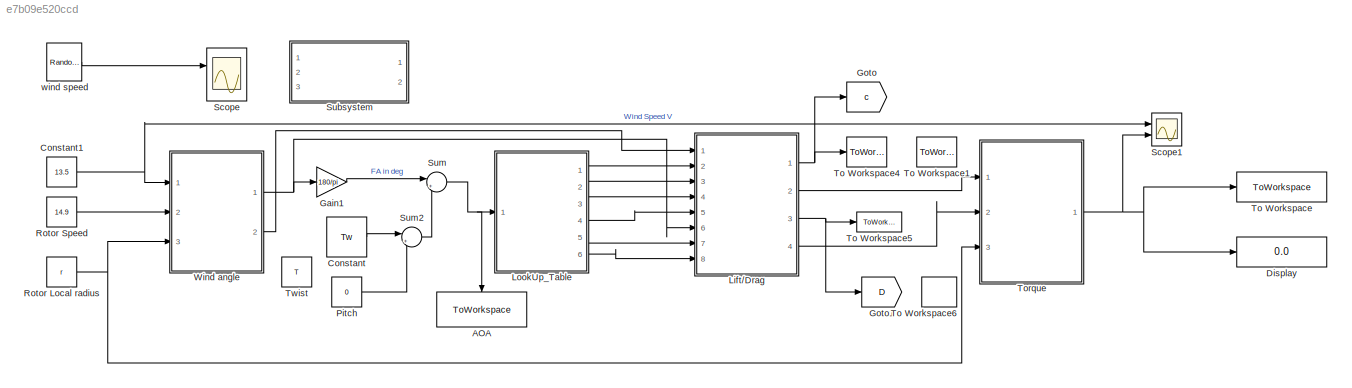
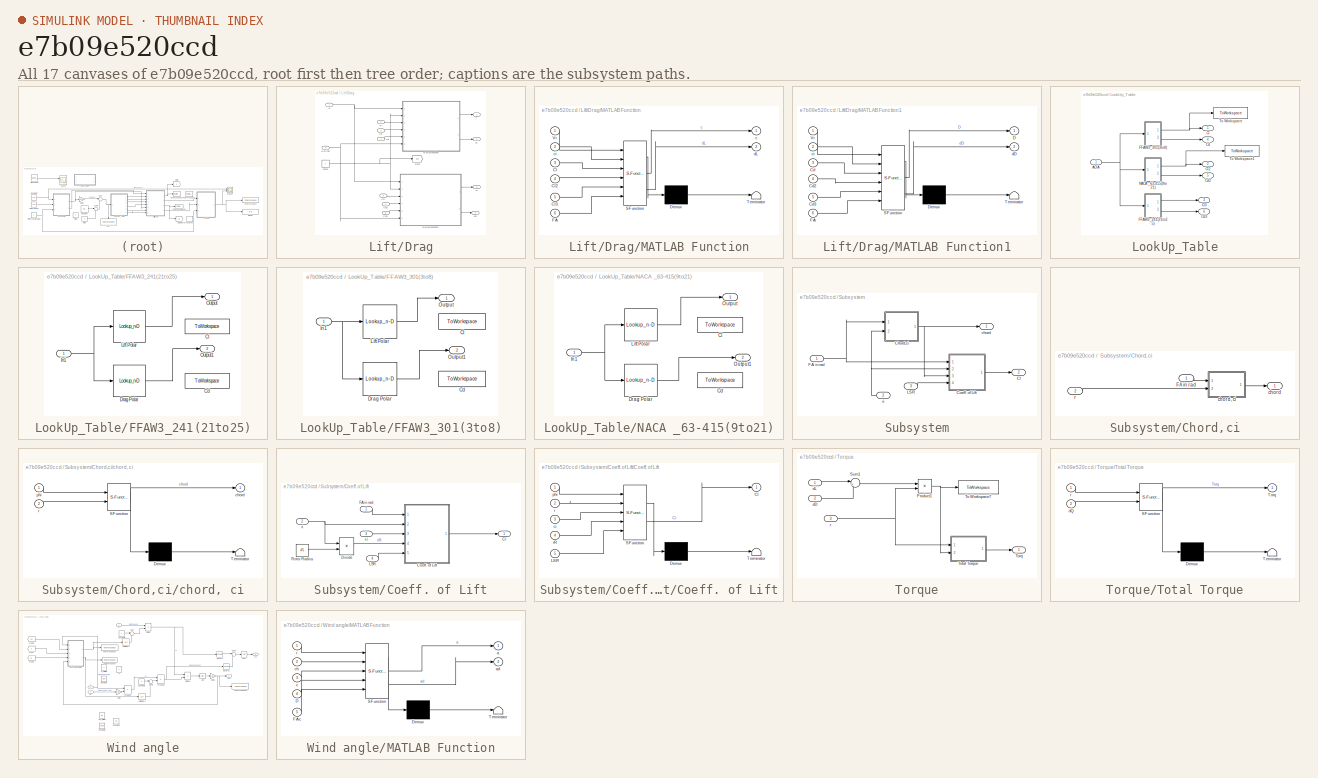
[diagram: thumbnail index - all 17 canvases of the model, root first then tree order]
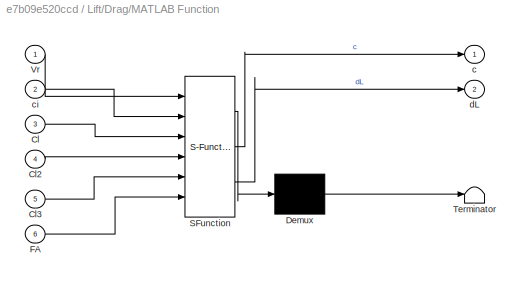
MODEL slx_e7b09e520ccd
KIND model
CONFIG AbsTol = auto
CONFIG EnableMultiTasking = off
CONFIG FixedStep = auto
CONFIG MaxStep = auto
CONFIG MinStep = auto
CONFIG RelTol = 1e-3
CONFIG SampleTimeConstraint = Unconstrained
CONFIG Solver = VariableStepAuto
CONFIG SolverName = VariableStepAuto
CONFIG StartTime = 0.0
CONFIG StopTime = 6
WORKSPACE source: mxarray member
WORKSPACE T: Simulink.Parameter (value not decoded)
WORKSPACE Tw: Simulink.Parameter (value not decoded)
WORKSPACE a: Simulink.Parameter (value not decoded)
WORKSPACE ad: Simulink.Parameter (value not decoded)
WORKSPACE adp5: Simulink.Parameter (value not decoded)
WORKSPACE ap5: Simulink.Parameter (value not decoded)
WORKSPACE c: Simulink.Parameter (value not decoded)
WORKSPACE r: Simulink.Parameter (value not decoded)
WORKSPACE wind_speed = [3 5]
BLOCK [ToWorkspace] AOA
  FixptAsFi = on
  MaxDataPoints = inf
  Ports = [1]
  SampleTime = -1
  Save2DSignal = 2-D array (concatenate along first dimension)
  VariableName = AOA
BLOCK [Constant] Constant
  SampleTime = -1
  Value = Tw
  VectorParams1D = off
BLOCK [Constant] Constant1
  Value = 13.5
BLOCK [Display] Display
  Decimation = 1
  Ports = [1]
BLOCK [Gain] Gain1
  Gain = 180/pi
BLOCK [Goto] Goto
  GotoTag = c
  TagVisibility = global
BLOCK [Goto] Goto1
  GotoTag = D
  TagVisibility = global
BLOCK [SubSystem] Lift//Drag
  Ports = [8, 4]
  RequestExecContextInheritance = off
BLOCK [Inport] Lift//Drag/Cd
  Port = 5
BLOCK [Inport] Lift//Drag/Cd2
  Port = 7
BLOCK [Inport] Lift//Drag/Cd3
  Port = 8
BLOCK [Inport] Lift//Drag/Cl
  Port = 2
BLOCK [Inport] Lift//Drag/Cl2
  Port = 3
BLOCK [Inport] Lift//Drag/Cl3
  Port = 4
BLOCK [Outport] Lift//Drag/D
  Port = 3
BLOCK [Inport] Lift//Drag/FA in rad
  Port = 6
BLOCK [Goto] Lift//Drag/Goto
  GotoTag = ch
  TagVisibility = global
BLOCK [SubSystem] Lift//Drag/MATLAB Function
  ErrorFcn = Stateflow.Translate.translate
  PermitHierarchicalResolution = ExplicitOnly
  Ports = [6, 2]
  RequestExecContextInheritance = off
  SFBlockType = MATLAB Function
  TreatAsAtomicUnit = on
BLOCK [Demux] Lift//Drag/MATLAB Function/ Demux 
  Outputs = 1
  Ports = [1, 1]
BLOCK [S-Function] Lift//Drag/MATLAB Function/ SFunction 
  EnableBusSupport = on
  FunctionName = sf_sfun
  PortCounts = [6 3]
  Ports = [6, 3]
  SFcnIsStateOwnerBlock = off
  SFunctionDeploymentMode = off
  Tag = Stateflow S-Function 3
BLOCK [Terminator] Lift//Drag/MATLAB Function/ Terminator 
BLOCK [Inport] Lift//Drag/MATLAB Function/Cl
  Port = 3
BLOCK [Inport] Lift//Drag/MATLAB Function/Cl2
  Port = 4
BLOCK [Inport] Lift//Drag/MATLAB Function/Cl3
  Port = 5
BLOCK [Inport] Lift//Drag/MATLAB Function/FA
  Port = 6
BLOCK [Inport] Lift//Drag/MATLAB Function/Vr
BLOCK [Outport] Lift//Drag/MATLAB Function/c
BLOCK [Inport] Lift//Drag/MATLAB Function/ci
  Port = 2
BLOCK [Outport] Lift//Drag/MATLAB Function/dL
  Port = 2
BLOCK [SubSystem] Lift//Drag/MATLAB Function1
  ErrorFcn = Stateflow.Translate.translate
  PermitHierarchicalResolution = ExplicitOnly
  Ports = [6, 2]
  RequestExecContextInheritance = off
  SFBlockType = MATLAB Function
  TreatAsAtomicUnit = on
BLOCK [Demux] Lift//Drag/MATLAB Function1/ Demux 
  Outputs = 1
  Ports = [1, 1]
BLOCK [S-Function] Lift//Drag/MATLAB Function1/ SFunction 
  EnableBusSupport = on
  FunctionName = sf_sfun
  PortCounts = [6 3]
  Ports = [6, 3]
  SFcnIsStateOwnerBlock = off
  SFunctionDeploymentMode = off
  Tag = Stateflow S-Function 4
BLOCK [Terminator] Lift//Drag/MATLAB Function1/ Terminator 
BLOCK [Inport] Lift//Drag/MATLAB Function1/Cd
  Port = 3
BLOCK [Inport] Lift//Drag/MATLAB Function1/Cd2
  Port = 4
BLOCK [Inport] Lift//Drag/MATLAB Function1/Cd3
  Port = 5
BLOCK [Outport] Lift//Drag/MATLAB Function1/D
BLOCK [Inport] Lift//Drag/MATLAB Function1/FA
  Port = 6
BLOCK [Inport] Lift//Drag/MATLAB Function1/Vr
BLOCK [Inport] Lift//Drag/MATLAB Function1/ci
  Port = 2
BLOCK [Outport] Lift//Drag/MATLAB Function1/dD
  Port = 2
BLOCK [Inport] Lift//Drag/Vr
BLOCK [Outport] Lift//Drag/c
BLOCK [Constant] Lift//Drag/chord
  Value = c
BLOCK [Outport] Lift//Drag/dD
  Port = 4
BLOCK [Outport] Lift//Drag/dL
  Port = 2
BLOCK [SubSystem] LookUp_Table
  Ports = [1, 6]
  RequestExecContextInheritance = off
BLOCK [Inport] LookUp_Table/AOA
BLOCK [Outport] LookUp_Table/Cd
  Port = 4
BLOCK [Outport] LookUp_Table/Cd2
  Port = 5
BLOCK [Outport] LookUp_Table/Cd3
  Port = 6
BLOCK [Outport] LookUp_Table/Cl
BLOCK [Outport] LookUp_Table/Cl2
  Port = 2
BLOCK [Outport] LookUp_Table/Cl3
  Port = 3
BLOCK [SubSystem] LookUp_Table/FFAW3_241(21to25)
  Ports = [1, 2]
  RequestExecContextInheritance = off
BLOCK [ToWorkspace] LookUp_Table/FFAW3_241(21to25)/Cd
  Commented = on
  FixptAsFi = on
  MaxDataPoints = inf
  Ports = [1]
  SampleTime = -1
  Save2DSignal = 2-D array (concatenate along first dimension)
  VariableName = Cd3
BLOCK [ToWorkspace] LookUp_Table/FFAW3_241(21to25)/Cl
  Commented = on
  FixptAsFi = on
  MaxDataPoints = inf
  Ports = [1]
  SampleTime = -1
  Save2DSignal = 2-D array (concatenate along first dimension)
  VariableName = Cl3
BLOCK [Lookup_n-D] LookUp_Table/FFAW3_241(21to25)/Drag Polar
  BreakpointsForDimension1 = [-4.66442953\n-3.951342282\n-3.36409396\n-2.609060403\n-1.895973154\n-1.266778523\n-0.511744966\n0.033557047\n0.830536913\n1.543624161\n2.088926174\n2.718120805\n3.55704698\n4.270134228\n5.067114094\n6.031879195\n6.954697987\n7.583892617\n8.296979866\n8.968120805\n9.639261745\n10.26845638\n11.23322148\n11.90436242\n12.44966443\n12.95302013\n13.70805369\n14.2533557\n14.75671141\n15.26006711\n15.76342282\n16.01510067]
  InternalRulePriority = Speed
  NumberOfTableDimensions = 1
  Ports = [1, 1]
  RndMeth = Simplest
  Table = [0.010843373\n0.010240964\n0.009939759\n0.010240964\n0.009638554\n0.009939759\n0.009337349\n0.009939759\n0.009939759\n0.010542169\n0.010542169\n0.011144578\n0.011144578\n0.011746988\n0.012349398\n0.012650602\n0.014156627\n0.014457831\n0.014759036\n0.016566265\n0.017168675\n0.017771084\n0.020180723\n0.021385542\n0.022289157\n0.023192771\n0.026204819\n0.028012048\n0.031024096\n0.034337349\n0.039457831\n0.041566265]
BLOCK [Inport] LookUp_Table/FFAW3_241(21to25)/In1
BLOCK [Lookup_n-D] LookUp_Table/FFAW3_241(21to25)/Lift Polar
  BreakpointsForDimension1 = [0.165837479\n0.870646766\n1.451077944\n2.031509121\n2.529021559\n3.109452736\n3.565505804\n4.104477612\n4.60199005\n5.016583748\n5.679933665\n6.343283582\n6.92371476\n7.587064677\n8.084577114\n8.830845771\n9.577114428\n9.950248756\n10.61359867\n11.35986733\n12.10613599\n12.89386401\n13.64013267\n14.51077944\n15.46434494\n16.12769486\n16.83250415\n17.66169154\n18.44941957\n19.32006633\n20.02487562\n20.77114428\n21.51741294\n22.30...<+55ch>
  InternalRulePriority = Speed
  NumberOfTableDimensions = 1
  Ports = [1, 1]
  RndMeth = Simplest
  Table = [0.238095238\n0.285714286\n0.357142857\n0.416666667\n0.5\n0.55952381\n0.607142857\n0.654761905\n0.720238095\n0.785714286\n0.845238095\n0.922619048\n1\n1.035714286\n1.107142857\n1.166666667\n1.244047619\n1.297619048\n1.357142857\n1.398809524\n1.44047619\n1.517857143\n1.523809524\n1.458333333\n1.43452381\n1.422619048\n1.416666667\n1.410714286\n1.392857143\n1.380952381\n1.357142857\n1.345238095\n1.30952381\n1.297619048\n1.279761905\n1...<+35ch>
BLOCK [Outport] LookUp_Table/FFAW3_241(21to25)/Output
BLOCK [Outport] LookUp_Table/FFAW3_241(21to25)/Output1
  Port = 2
BLOCK [SubSystem] LookUp_Table/FFAW3_301(3to8)
  Ports = [1, 2]
  RequestExecContextInheritance = off
BLOCK [ToWorkspace] LookUp_Table/FFAW3_301(3to8)/Cd
  Commented = on
  FixptAsFi = on
  MaxDataPoints = inf
  Ports = [1]
  SampleTime = -1
  Save2DSignal = 2-D array (concatenate along first dimension)
  VariableName = Cd
BLOCK [ToWorkspace] LookUp_Table/FFAW3_301(3to8)/Cl
  Commented = on
  FixptAsFi = on
  MaxDataPoints = inf
  Ports = [1]
  SampleTime = -1
  Save2DSignal = 2-D array (concatenate along first dimension)
  VariableName = Cl
BLOCK [Lookup_n-D] LookUp_Table/FFAW3_301(3to8)/Drag Polar
  BreakpointsForDimension1 = [0.095846645\n0.623003195\n1.150159744\n1.629392971\n2.156549521\n2.68370607\n3.21086262\n3.785942492\n4.217252396\n4.600638978\n5.079872204\n5.702875399\n6.42172524\n7.284345048\n7.955271565\n8.722044728\n9.440894569\n10.25559105\n10.97444089\n11.59744409\n12.22044728\n12.65175719\n13.22683706\n13.84984026\n14.47284345\n15.14376997\n15.67092652\n16.24600639\n16.77316294\n17.20447284\n17.73162939\n18.25878594\n18.78594249\n19.600...<+161ch>
  InternalRulePriority = Speed
  NumberOfTableDimensions = 1
  Ports = [1, 1]
  RndMeth = Simplest
  Table = [0.050561798\n0.049297753\n0.049297753\n0.049297753\n0.049297753\n0.048033708\n0.049297753\n0.049297753\n0.050561798\n0.050561798\n0.050561798\n0.050561798\n0.051825843\n0.051825843\n0.053089888\n0.054353933\n0.061938202\n0.074578652\n0.079634831\n0.092275281\n0.094803371\n0.097331461\n0.10238764\n0.1125\n0.118820225\n0.131460674\n0.136516854\n0.149157303\n0.160533708\n0.168117978\n0.173174157\n0.180758427\n0.188342697\n0.1984550...<+158ch>
BLOCK [Inport] LookUp_Table/FFAW3_301(3to8)/In1
BLOCK [Lookup_n-D] LookUp_Table/FFAW3_301(3to8)/Lift Polar
  BreakpointsForDimension1 = [0.142857143\n0.571428571\n1.047619048\n1.428571429\n1.80952381\n2.238095238\n2.571428571\n2.904761905\n3.238095238\n3.666666667\n4.095238095\n4.333333333\n4.714285714\n5.142857143\n5.428571429\n5.904761905\n6.380952381\n6.80952381\n7.285714286\n7.714285714\n8.238095238\n8.761904762\n9.238095238\n10.04761905\n10.66666667\n11.23809524\n11.80952381\n12.23809524\n12.85714286\n13.23809524\n13.95238095\n14.61904762\n15.19047619\n15.71...<+256ch>
  InternalRulePriority = Speed
  NumberOfTableDimensions = 1
  Ports = [1, 1]
  RndMeth = Simplest
  Table = [0.175722543\n0.249710983\n0.295953757\n0.351445087\n0.411560694\n0.467052023\n0.499421965\n0.54566474\n0.587283237\n0.638150289\n0.684393064\n0.726011561\n0.767630058\n0.804624277\n0.860115607\n0.897109827\n0.952601156\n0.989595376\n1.031213873\n1.07283237\n1.114450867\n1.146820809\n1.165317919\n1.165317919\n1.151445087\n1.156069364\n1.183815029\n1.211560694\n1.230057803\n1.267052023\n1.280924855\n1.299421965\n1.304046243\n1.313...<+257ch>
BLOCK [Outport] LookUp_Table/FFAW3_301(3to8)/Output
BLOCK [Outport] LookUp_Table/FFAW3_301(3to8)/Output1
  Port = 2
BLOCK [SubSystem] LookUp_Table/NACA _63-415(9to21)
  Ports = [1, 2]
  RequestExecContextInheritance = off
BLOCK [ToWorkspace] LookUp_Table/NACA _63-415(9to21)/Cd
  Commented = on
  FixptAsFi = on
  MaxDataPoints = inf
  Ports = [1]
  SampleTime = -1
  Save2DSignal = 2-D array (concatenate along first dimension)
  VariableName = Cd2
BLOCK [ToWorkspace] LookUp_Table/NACA _63-415(9to21)/Cl
  Commented = on
  FixptAsFi = on
  MaxDataPoints = inf
  Ports = [1]
  SampleTime = -1
  Save2DSignal = 2-D array (concatenate along first dimension)
  VariableName = Cl2
BLOCK [Lookup_n-D] LookUp_Table/NACA _63-415(9to21)/Drag Polar
  BreakpointsForDimension1 = [0.032626427\n0.619902121\n1.305057096\n1.76182708\n2.251223491\n2.740619902\n3.099510604\n3.654159869\n4.208809135\n4.730831974\n5.187601958\n5.709624796\n6.427406199\n6.982055465\n7.569331158\n8.156606852\n8.646003263\n9.037520392\n9.657422512\n9.983686786\n10.57096248\n10.99510604\n11.45187602\n11.87601958\n12.30016313\n12.62642741\n13.01794454\n13.37683524]
  InternalRulePriority = Speed
  NumberOfTableDimensions = 1
  Ports = [1, 1]
  RndMeth = Simplest
  Table = [0.004635762\n0.005099338\n0.004635762\n0.004635762\n0.005099338\n0.004635762\n0.005562914\n0.005562914\n0.005562914\n0.007417219\n0.008344371\n0.008344371\n0.009735099\n0.011125828\n0.011125828\n0.01205298\n0.013907285\n0.014834437\n0.015298013\n0.014834437\n0.016225166\n0.020860927\n0.023178808\n0.026887417\n0.031523179\n0.037086093\n0.03986755\n0.047284768]
BLOCK [Inport] LookUp_Table/NACA _63-415(9to21)/In1
BLOCK [Lookup_n-D] LookUp_Table/NACA _63-415(9to21)/Lift Polar
  BreakpointsForDimension1 = [0.093603744\n0.468018721\n0.904836193\n1.341653666\n1.684867395\n2.152886115\n2.55850234\n3.088923557\n3.556942278\n4.149765991\n4.586583463\n4.898595944\n5.335413417\n5.772230889\n6.115444618\n6.458658346\n6.833073323\n7.238689548\n7.613104524\n7.925117005\n8.361934477\n8.767550702\n9.110764431\n9.516380655\n9.953198128\n10.35881435\n10.76443058\n11.07644306\n11.45085803\n12.0124805\n12.51170047\n12.94851794\n13.32293292\n13.75...<+91ch>
  InternalRulePriority = Speed
  NumberOfTableDimensions = 1
  Ports = [1, 1]
  RndMeth = Simplest
  Table = [0.369230769\n0.432692308\n0.473076923\n0.530769231\n0.576923077\n0.623076923\n0.657692308\n0.709615385\n0.773076923\n0.807692308\n0.876923077\n0.923076923\n0.963461538\n0.992307692\n1.009615385\n1.05\n1.090384615\n1.125\n1.165384615\n1.2\n1.246153846\n1.280769231\n1.309615385\n1.35\n1.373076923\n1.407692308\n1.436538462\n1.465384615\n1.476923077\n1.5\n1.528846154\n1.546153846\n1.557692308\n1.546153846\n1.546153846\n1.523076923\n1.5...<+49ch>
BLOCK [Outport] LookUp_Table/NACA _63-415(9to21)/Output
BLOCK [Outport] LookUp_Table/NACA _63-415(9to21)/Output1
  Port = 2
BLOCK [ToWorkspace] LookUp_Table/To Workspace
  FixptAsFi = on
  MaxDataPoints = inf
  Ports = [1]
  SampleTime = -1
  Save2DSignal = 2-D array (concatenate along first dimension)
  VariableName = Cl
BLOCK [ToWorkspace] LookUp_Table/To Workspace1
  FixptAsFi = on
  MaxDataPoints = inf
  Ports = [1]
  SampleTime = -1
  Save2DSignal = 2-D array (concatenate along first dimension)
  VariableName = Cl2
BLOCK [Constant] Pitch
  Value = 0
BLOCK [Constant] Rotor Local radius
  Value = r
BLOCK [Constant] Rotor Speed
  Value = 14.9
  VectorParams1D = off
BLOCK [Scope] Scope
  Commented = on
  Floating = off
  NumInputPorts = 2
  Ports = [2]
  ScopeSpecificationString = Simulink.scopes.TimeScopeBlockCfg('CurrentConfiguration', extmgr.ConfigurationSet(extmgr.Configuration('Core','General UI',true),extmgr.Configuration('Core','Source UI',true),extmgr.Configuration('Sources','WiredSimulink',true),extmgr.Configuration('Visuals','Time Domain',true,'SerializedDisplays',{struct('MinYLimReal','12.47282','MaxYLimReal','18.55484','YLabelReal','','MinYLimMag','12.47282','Ma...<+2031ch>
BLOCK [Scope] Scope1
  Floating = off
  NumInputPorts = 2
  Ports = [2]
  ScopeSpecificationString = Simulink.scopes.TimeScopeBlockCfg('CurrentConfiguration', extmgr.ConfigurationSet(extmgr.Configuration('Core','General UI',true),extmgr.Configuration('Core','Source UI',true),extmgr.Configuration('Sources','WiredSimulink',true,'DataLoggingVariableName','ScopeData1'),extmgr.Configuration('Visuals','Time Domain',true,'SerializedDisplays',{struct('MinYLimReal','3.5','MaxYLimReal','23.5','YLabelReal',...<+2070ch>
BLOCK [SubSystem] Subsystem
  Commented = on
  Ports = [3, 2]
  RequestExecContextInheritance = off
BLOCK [SubSystem] Subsystem/Chord,ci
  Ports = [2, 1]
  RequestExecContextInheritance = off
BLOCK [Inport] Subsystem/Chord,ci/FA in rad
BLOCK [Outport] Subsystem/Chord,ci/chord
BLOCK [SubSystem] Subsystem/Chord,ci/chord, ci
  ErrorFcn = Stateflow.Translate.translate
  PermitHierarchicalResolution = ExplicitOnly
  Ports = [2, 1]
  RequestExecContextInheritance = off
  SFBlockType = MATLAB Function
  TreatAsAtomicUnit = on
BLOCK [Demux] Subsystem/Chord,ci/chord, ci/ Demux 
  Outputs = 1
  Ports = [1, 1]
BLOCK [S-Function] Subsystem/Chord,ci/chord, ci/ SFunction 
  EnableBusSupport = on
  FunctionName = sf_sfun
  PortCounts = [2 2]
  Ports = [2, 2]
  SFcnIsStateOwnerBlock = off
  SFunctionDeploymentMode = off
  Tag = Stateflow S-Function 2
BLOCK [Terminator] Subsystem/Chord,ci/chord, ci/ Terminator 
BLOCK [Outport] Subsystem/Chord,ci/chord, ci/chord
BLOCK [Inport] Subsystem/Chord,ci/chord, ci/phi
BLOCK [Inport] Subsystem/Chord,ci/chord, ci/r
  Port = 2
BLOCK [Inport] Subsystem/Chord,ci/r
  Port = 2
BLOCK [Outport] Subsystem/Cl
  Port = 2
BLOCK [SubSystem] Subsystem/Coeff. of Lift
  Ports = [4, 1]
  RequestExecContextInheritance = off
BLOCK [Outport] Subsystem/Coeff. of Lift/Cl
BLOCK [SubSystem] Subsystem/Coeff. of Lift/Coeff. of Lift
  ErrorFcn = Stateflow.Translate.translate
  PermitHierarchicalResolution = ExplicitOnly
  Ports = [5, 1]
  RequestExecContextInheritance = off
  SFBlockType = MATLAB Function
  TreatAsAtomicUnit = on
BLOCK [Demux] Subsystem/Coeff. of Lift/Coeff. of Lift/ Demux 
  Outputs = 1
  Ports = [1, 1]
BLOCK [S-Function] Subsystem/Coeff. of Lift/Coeff. of Lift/ SFunction 
  EnableBusSupport = on
  FunctionName = sf_sfun
  PortCounts = [5 2]
  Ports = [5, 2]
  SFcnIsStateOwnerBlock = off
  SFunctionDeploymentMode = off
  Tag = Stateflow S-Function 1
BLOCK [Terminator] Subsystem/Coeff. of Lift/Coeff. of Lift/ Terminator 
BLOCK [Outport] Subsystem/Coeff. of Lift/Coeff. of Lift/Cl
BLOCK [Inport] Subsystem/Coeff. of Lift/Coeff. of Lift/LSR
  Port = 5
BLOCK [Inport] Subsystem/Coeff. of Lift/Coeff. of Lift/ci
  Port = 3
BLOCK [Inport] Subsystem/Coeff. of Lift/Coeff. of Lift/phi
BLOCK [Inport] Subsystem/Coeff. of Lift/Coeff. of Lift/r
  Port = 2
BLOCK [Inport] Subsystem/Coeff. of Lift/Coeff. of Lift/rR
  Port = 4
BLOCK [Product] Subsystem/Coeff. of Lift/Divide
  Inputs = */
  Ports = [2, 1]
BLOCK [Inport] Subsystem/Coeff. of Lift/FA in rad
BLOCK [Inport] Subsystem/Coeff. of Lift/LSR
  Port = 4
BLOCK [Constant] Subsystem/Coeff. of Lift/Rotor Radius
  Value = 45
BLOCK [Inport] Subsystem/Coeff. of Lift/ci
  Port = 3
BLOCK [Inport] Subsystem/Coeff. of Lift/ri
  Port = 2
BLOCK [Inport] Subsystem/FA in rad
BLOCK [Inport] Subsystem/LSR
  Port = 3
BLOCK [Outport] Subsystem/chord
BLOCK [Inport] Subsystem/ri
  Port = 2
BLOCK [Sum] Sum
  Inputs = |+-
  Ports = [2, 1]
BLOCK [Sum] Sum2
  Inputs = |++
  Ports = [2, 1]
BLOCK [ToWorkspace] To Workspace
  FixptAsFi = on
  MaxDataPoints = inf
  Ports = [1]
  SampleTime = -1
  Save2DSignal = 2-D array (concatenate along first dimension)
  VariableName = totTorq
BLOCK [ToWorkspace] To Workspace1
  Commented = on
  FixptAsFi = on
  MaxDataPoints = inf
  Ports = [1]
  SampleTime = -1
  Save2DSignal = 2-D array (concatenate along first dimension)
  VariableName = dL
BLOCK [ToWorkspace] To Workspace4
  FixptAsFi = on
  MaxDataPoints = inf
  Ports = [1]
  SampleTime = -1
  Save2DSignal = 2-D array (concatenate along first dimension)
  VariableName = c
BLOCK [ToWorkspace] To Workspace5
  FixptAsFi = on
  MaxDataPoints = inf
  Ports = [1]
  SampleTime = -1
  Save2DSignal = 2-D array (concatenate along first dimension)
  VariableName = D
BLOCK [ToWorkspace] To Workspace6
  Commented = on
  FixptAsFi = on
  MaxDataPoints = inf
  Ports = [1]
  SampleTime = -1
  Save2DSignal = 2-D array (concatenate along first dimension)
  VariableName = dD
BLOCK [SubSystem] Torque
  Ports = [3, 1]
  RequestExecContextInheritance = off
BLOCK [Product] Torque/Product1
  Ports = [2, 1]
BLOCK [Sum] Torque/Sum1
  Inputs = |+-
  Ports = [2, 1]
BLOCK [ToWorkspace] Torque/To Workspace7
  FixptAsFi = on
  MaxDataPoints = inf
  Ports = [1]
  SampleTime = -1
  Save2DSignal = 2-D array (concatenate along first dimension)
  VariableName = dQ
BLOCK [Outport] Torque/Torq
BLOCK [SubSystem] Torque/Total Torque
  ErrorFcn = Stateflow.Translate.translate
  PermitHierarchicalResolution = ExplicitOnly
  Ports = [2, 1]
  RequestExecContextInheritance = off
  SFBlockType = MATLAB Function
  TreatAsAtomicUnit = on
BLOCK [Demux] Torque/Total Torque/ Demux 
  Outputs = 1
  Ports = [1, 1]
BLOCK [S-Function] Torque/Total Torque/ SFunction 
  EnableBusSupport = on
  FunctionName = sf_sfun
  PortCounts = [2 2]
  Ports = [2, 2]
  SFcnIsStateOwnerBlock = off
  SFunctionDeploymentMode = off
  Tag = Stateflow S-Function 5
BLOCK [Terminator] Torque/Total Torque/ Terminator 
BLOCK [Outport] Torque/Total Torque/Torq
BLOCK [Inport] Torque/Total Torque/dQ
  Port = 2
BLOCK [Inport] Torque/Total Torque/r
BLOCK [Inport] Torque/dD
  Port = 2
BLOCK [Inport] Torque/dL
BLOCK [Inport] Torque/r
  Port = 3
BLOCK [Constant] Twist
  Commented = on
  Value = T
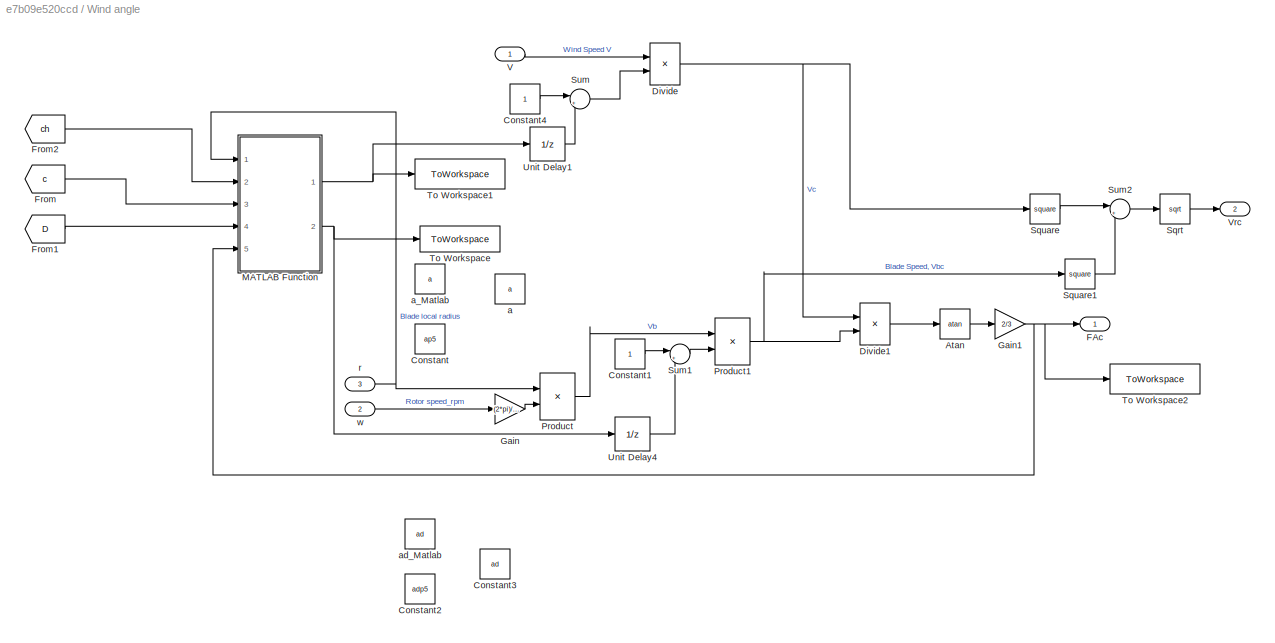
BLOCK [SubSystem] Wind angle
  Ports = [3, 2]
  RequestExecContextInheritance = off
BLOCK [Trigonometry] Wind angle/Atan
  Operator = atan
  Ports = [1, 1]
BLOCK [Constant] Wind angle/Constant
  Commented = on
  Value = ap5
BLOCK [Constant] Wind angle/Constant1
BLOCK [Constant] Wind angle/Constant2
  Commented = on
  Value = adp5
BLOCK [Constant] Wind angle/Constant3
  Commented = on
  Value = ad
BLOCK [Constant] Wind angle/Constant4
BLOCK [Product] Wind angle/Divide
  Inputs = **
  Ports = [2, 1]
BLOCK [Product] Wind angle/Divide1
  Inputs = */
  Ports = [2, 1]
BLOCK [Outport] Wind angle/FAc
BLOCK [From] Wind angle/From
  GotoTag = c
  TagVisibility = global
BLOCK [From] Wind angle/From1
  GotoTag = D
  TagVisibility = global
BLOCK [From] Wind angle/From2
  GotoTag = ch
  TagVisibility = global
BLOCK [Gain] Wind angle/Gain
  Gain = (2*pi)/60
BLOCK [Gain] Wind angle/Gain1
  Gain = 2/3
BLOCK [SubSystem] Wind angle/MATLAB Function
  ErrorFcn = Stateflow.Translate.translate
  PermitHierarchicalResolution = ExplicitOnly
  Ports = [5, 2]
  RequestExecContextInheritance = off
  SFBlockType = MATLAB Function
  TreatAsAtomicUnit = on
BLOCK [Demux] Wind angle/MATLAB Function/ Demux 
  Outputs = 1
  Ports = [1, 1]
BLOCK [S-Function] Wind angle/MATLAB Function/ SFunction 
  EnableBusSupport = on
  FunctionName = sf_sfun
  PortCounts = [5 3]
  Ports = [5, 3]
  SFcnIsStateOwnerBlock = off
  SFunctionDeploymentMode = off
  Tag = Stateflow S-Function 6
BLOCK [Terminator] Wind angle/MATLAB Function/ Terminator 
BLOCK [Inport] Wind angle/MATLAB Function/D
  Port = 4
BLOCK [Inport] Wind angle/MATLAB Function/FAc
  Port = 5
BLOCK [Outport] Wind angle/MATLAB Function/a
BLOCK [Outport] Wind angle/MATLAB Function/ad
  Port = 2
BLOCK [Inport] Wind angle/MATLAB Function/c
  Port = 3
BLOCK [Inport] Wind angle/MATLAB Function/ch
  Port = 2
BLOCK [Inport] Wind angle/MATLAB Function/r
BLOCK [Product] Wind angle/Product
  Ports = [2, 1]
BLOCK [Product] Wind angle/Product1
  Ports = [2, 1]
BLOCK [Sqrt] Wind angle/Sqrt
BLOCK [Math] Wind angle/Square
  Operator = square
  Ports = [1, 1]
BLOCK [Math] Wind angle/Square1
  Operator = square
  Ports = [1, 1]
BLOCK [Sum] Wind angle/Sum
  Inputs = |+-
  Ports = [2, 1]
BLOCK [Sum] Wind angle/Sum1
  Inputs = |++
  Ports = [2, 1]
BLOCK [Sum] Wind angle/Sum2
  Inputs = |++
  Ports = [2, 1]
BLOCK [ToWorkspace] Wind angle/To Workspace
  FixptAsFi = on
  MaxDataPoints = inf
  Ports = [1]
  SampleTime = -1
  Save2DSignal = 2-D array (concatenate along first dimension)
  VariableName = ad
BLOCK [ToWorkspace] Wind angle/To Workspace1
  FixptAsFi = on
  MaxDataPoints = inf
  Ports = [1]
  SampleTime = -1
  Save2DSignal = 2-D array (concatenate along first dimension)
  VariableName = a
BLOCK [ToWorkspace] Wind angle/To Workspace2
  FixptAsFi = on
  MaxDataPoints = inf
  Ports = [1]
  SampleTime = -1
  Save2DSignal = 2-D array (concatenate along first dimension)
  VariableName = FAc
BLOCK [UnitDelay] Wind angle/Unit Delay1
  HasFrameUpgradeWarning = on
  SampleTime = -1
BLOCK [UnitDelay] Wind angle/Unit Delay4
  HasFrameUpgradeWarning = on
  SampleTime = -1
BLOCK [Inport] Wind angle/V
BLOCK [Outport] Wind angle/Vrc
  Port = 2
BLOCK [Constant] Wind angle/a
  Commented = on
  Value = a
BLOCK [Constant] Wind angle/a_Matlab
  Commented = on
  Value = a
BLOCK [Constant] Wind angle/ad_Matlab
  Commented = on
  Value = ad
BLOCK [Inport] Wind angle/r
  Port = 3
BLOCK [Inport] Wind angle/w
  Port = 2
BLOCK [Reference] wind speed  REF=dspsrcs4/Random
Source
  Commented = on
  Ports = [0, 1]
  SourceBlock = dspsrcs4/Random\nSource
  SourceProductBaseCode = DS
  SourceType = Random Source
  UserDataPersistent = on
NET Constant1:1 -> Scope1:1, Wind angle:1
LINE Constant:1 -> Sum2:1
LINE Gain1:1 -> Sum:1
LINE Lift//Drag/Cd2:1 -> Lift//Drag/MATLAB Function1:4
LINE Lift//Drag/Cd3:1 -> Lift//Drag/MATLAB Function1:5
LINE Lift//Drag/Cd:1 -> Lift//Drag/MATLAB Function1:3
LINE Lift//Drag/Cl2:1 -> Lift//Drag/MATLAB Function:4
LINE Lift//Drag/Cl3:1 -> Lift//Drag/MATLAB Function:5
LINE Lift//Drag/Cl:1 -> Lift//Drag/MATLAB Function:3
NET Lift//Drag/FA in rad:1 -> Lift//Drag/MATLAB Function1:6, Lift//Drag/MATLAB Function:6
LINE Lift//Drag/MATLAB Function1:1 -> Lift//Drag/D:1
LINE Lift//Drag/MATLAB Function1:2 -> Lift//Drag/dD:1
LINE Lift//Drag/MATLAB Function:1 -> Lift//Drag/c:1
LINE Lift//Drag/MATLAB Function:2 -> Lift//Drag/dL:1
NET Lift//Drag/Vr:1 -> Lift//Drag/MATLAB Function1:1, Lift//Drag/MATLAB Function:1
NET Lift//Drag/chord:1 -> Lift//Drag/Goto:1, Lift//Drag/MATLAB Function1:2, Lift//Drag/MATLAB Function:2
NET Lift//Drag:1 -> Goto:1, To Workspace4:1
LINE Lift//Drag:2 -> Torque:1
NET Lift//Drag:3 -> Goto1:1, To Workspace5:1
LINE Lift//Drag:4 -> Torque:2
NET LookUp_Table/AOA:1 -> LookUp_Table/FFAW3_241(21to25):1, LookUp_Table/FFAW3_301(3to8):1, LookUp_Table/NACA _63-415(9to21):1
LINE LookUp_Table/FFAW3_241(21to25)/Drag Polar:1 -> LookUp_Table/FFAW3_241(21to25)/Output1:1
NET LookUp_Table/FFAW3_241(21to25)/In1:1 -> LookUp_Table/FFAW3_241(21to25)/Drag Polar:1, LookUp_Table/FFAW3_241(21to25)/Lift Polar:1
LINE LookUp_Table/FFAW3_241(21to25)/Lift Polar:1 -> LookUp_Table/FFAW3_241(21to25)/Output:1
LINE LookUp_Table/FFAW3_241(21to25):1 -> LookUp_Table/Cl3:1
LINE LookUp_Table/FFAW3_241(21to25):2 -> LookUp_Table/Cd3:1
LINE LookUp_Table/FFAW3_301(3to8)/Drag Polar:1 -> LookUp_Table/FFAW3_301(3to8)/Output1:1
NET LookUp_Table/FFAW3_301(3to8)/In1:1 -> LookUp_Table/FFAW3_301(3to8)/Drag Polar:1, LookUp_Table/FFAW3_301(3to8)/Lift Polar:1
LINE LookUp_Table/FFAW3_301(3to8)/Lift Polar:1 -> LookUp_Table/FFAW3_301(3to8)/Output:1
NET LookUp_Table/FFAW3_301(3to8):1 -> LookUp_Table/Cl:1, LookUp_Table/To Workspace:1
LINE LookUp_Table/FFAW3_301(3to8):2 -> LookUp_Table/Cd:1
LINE LookUp_Table/NACA _63-415(9to21)/Drag Polar:1 -> LookUp_Table/NACA _63-415(9to21)/Output1:1
NET LookUp_Table/NACA _63-415(9to21)/In1:1 -> LookUp_Table/NACA _63-415(9to21)/Drag Polar:1, LookUp_Table/NACA _63-415(9to21)/Lift Polar:1
LINE LookUp_Table/NACA _63-415(9to21)/Lift Polar:1 -> LookUp_Table/NACA _63-415(9to21)/Output:1
NET LookUp_Table/NACA _63-415(9to21):1 -> LookUp_Table/Cl2:1, LookUp_Table/To Workspace1:1
LINE LookUp_Table/NACA _63-415(9to21):2 -> LookUp_Table/Cd2:1
LINE LookUp_Table:1 -> Lift//Drag:2
LINE LookUp_Table:2 -> Lift//Drag:3
LINE LookUp_Table:3 -> Lift//Drag:4
LINE LookUp_Table:4 -> Lift//Drag:5
LINE LookUp_Table:5 -> Lift//Drag:7
LINE LookUp_Table:6 -> Lift//Drag:8
LINE Pitch:1 -> Sum2:2
NET Rotor Local radius:1 -> Torque:3, Wind angle:3
LINE Rotor Speed:1 -> Wind angle:2
LINE Subsystem/Chord,ci/FA in rad:1 -> Subsystem/Chord,ci/chord, ci:1
LINE Subsystem/Chord,ci/chord, ci:1 -> Subsystem/Chord,ci/chord:1
LINE Subsystem/Chord,ci/r:1 -> Subsystem/Chord,ci/chord, ci:2
NET Subsystem/Chord,ci:1 -> Subsystem/Coeff. of Lift:3, Subsystem/chord:1
LINE Subsystem/Coeff. of Lift/Coeff. of Lift:1 -> Subsystem/Coeff. of Lift/Cl:1
LINE Subsystem/Coeff. of Lift/Divide:1 -> Subsystem/Coeff. of Lift/Coeff. of Lift:4
LINE Subsystem/Coeff. of Lift/FA in rad:1 -> Subsystem/Coeff. of Lift/Coeff. of Lift:1
LINE Subsystem/Coeff. of Lift/LSR:1 -> Subsystem/Coeff. of Lift/Coeff. of Lift:5
LINE Subsystem/Coeff. of Lift/Rotor Radius:1 -> Subsystem/Coeff. of Lift/Divide:2
LINE Subsystem/Coeff. of Lift/ci:1 -> Subsystem/Coeff. of Lift/Coeff. of Lift:3
NET Subsystem/Coeff. of Lift/ri:1 -> Subsystem/Coeff. of Lift/Coeff. of Lift:2, Subsystem/Coeff. of Lift/Divide:1
LINE Subsystem/Coeff. of Lift:1 -> Subsystem/Cl:1
NET Subsystem/FA in rad:1 -> Subsystem/Chord,ci:1, Subsystem/Coeff. of Lift:1
LINE Subsystem/LSR:1 -> Subsystem/Coeff. of Lift:4
NET Subsystem/ri:1 -> Subsystem/Chord,ci:2, Subsystem/Coeff. of Lift:2
LINE Sum2:1 -> Sum:2
NET Sum:1 -> AOA:1, LookUp_Table:1
NET Torque/Product1:1 -> Torque/To Workspace7:1, Torque/Total Torque:2
LINE Torque/Sum1:1 -> Torque/Product1:1
LINE Torque/Total Torque:1 -> Torque/Torq:1
LINE Torque/dD:1 -> Torque/Sum1:2
LINE Torque/dL:1 -> Torque/Sum1:1
NET Torque/r:1 -> Torque/Product1:2, Torque/Total Torque:1
NET Torque:1 -> Display:1, Scope1:2, To Workspace:1
LINE Wind angle/Atan:1 -> Wind angle/Gain1:1
LINE Wind angle/Constant1:1 -> Wind angle/Sum1:1
LINE Wind angle/Constant4:1 -> Wind angle/Sum:1
LINE Wind angle/Divide1:1 -> Wind angle/Atan:1
NET Wind angle/Divide:1 -> Wind angle/Divide1:1, Wind angle/Square:1
LINE Wind angle/From1:1 -> Wind angle/MATLAB Function:4
LINE Wind angle/From2:1 -> Wind angle/MATLAB Function:2
LINE Wind angle/From:1 -> Wind angle/MATLAB Function:3
NET Wind angle/Gain1:1 -> Wind angle/FAc:1, Wind angle/MATLAB Function:5, Wind angle/To Workspace2:1
LINE Wind angle/Gain:1 -> Wind angle/Product:2
NET Wind angle/MATLAB Function:1 -> Wind angle/To Workspace1:1, Wind angle/Unit Delay1:1
NET Wind angle/MATLAB Function:2 -> Wind angle/To Workspace:1, Wind angle/Unit Delay4:1
NET Wind angle/Product1:1 -> Wind angle/Divide1:2, Wind angle/Square1:1
LINE Wind angle/Product:1 -> Wind angle/Product1:1
LINE Wind angle/Sqrt:1 -> Wind angle/Vrc:1
LINE Wind angle/Square1:1 -> Wind angle/Sum2:2
LINE Wind angle/Square:1 -> Wind angle/Sum2:1
LINE Wind angle/Sum1:1 -> Wind angle/Product1:2
LINE Wind angle/Sum2:1 -> Wind angle/Sqrt:1
LINE Wind angle/Sum:1 -> Wind angle/Divide:2
LINE Wind angle/Unit Delay1:1 -> Wind angle/Sum:2
LINE Wind angle/Unit Delay4:1 -> Wind angle/Sum1:2
LINE Wind angle/V:1 -> Wind angle/Divide:1
NET Wind angle/r:1 -> Wind angle/MATLAB Function:1, Wind angle/Product:1
LINE Wind angle/w:1 -> Wind angle/Gain:1
NET Wind angle:1 -> Gain1:1, Lift//Drag:6
LINE Wind angle:2 -> Lift//Drag:1
LINE wind speed:1 -> Scope:1
note: NET lines group one-source signal fan-out (src -> all destinations, sorted); 1:1 wires keep LINE
CHART Subsystem/Coeff. of Lift/Coeff. of Lift states=1 transitions=1
  STATE_LABEL 'eML_blk_kernel()'
  STATE_LABEL 'SCRIPT:\nfunction Cl = fcn(phi, r, ci, rR, LSR)\nB  = 3;                                                                    %No. of Blades\nsigma = (B.*ci)./(2*pi()*r);                                               %solidity ratio\nF     = (2.*[acos(exp(-[(B/2).*(1-rR)]./[rR.*sin(phi)]))])./pi();          %F \nN     = [4.*F.*sin(phi)].*[cos(phi)-(LSR.*sin(phi))];                      %Numerator\nD     =...<+176ch>'
CHART Subsystem/Chord,ci/chord, ci states=1 transitions=1
  STATE_LABEL 'eML_blk_kernel()'
  STATE_LABEL 'SCRIPT:\nfunction chord = fcn(phi,r)\n%chord, ci = (8*pi()*ri)*(1-cos(phi))/(B*Cldesign)\nB  = 3;      %No. of Blades\nCl = 1.3;    %Cldesign\nk  = (8*pi())/(B*Cl);\nchord = k.* r.*(1-cos(phi));\nend\n\n\n\n\n\n\n\n\n\n'
CHART Lift//Drag/MATLAB Function states=1 transitions=1
  STATE_LABEL 'eML_blk_kernel()'
  STATE_LABEL 'SCRIPT:\nfunction [c,dL]  = fcn(Vr,ci,Cl, Cl2, Cl3,FA)\n% dL  = B*0.5*rho*Vr^2*ci*Cl\nB   = 3;                                  %No. of Blades\nrho = 1.2;                                %density of air in kg/m3\nk   = B*0.5*rho;\nc=zeros(25,1);\nfor i= 1:length(Cl)\n    if i>=3 && i<9\n        c(i,1)=Cl(i,1);\n    elseif i>=9 && i<22\n        c(i,1)=Cl2(i,1);\n    elseif i>=22\n        c(i,1)=Cl3(i,1);\n    end...<+71ch>'
CHART Lift//Drag/MATLAB Function1 states=1 transitions=1
  STATE_LABEL 'eML_blk_kernel()'
  STATE_LABEL 'SCRIPT:\nfunction [D,dD]   = fcn(Vr,ci,Cd,Cd2,Cd3,FA)\n% dD  = B*0.5*rho*Vr^2*ci*Cd\nB   = 3;                                  %No. of Blades\nrho = 1.2;                                %density of air in kg/m3\nk   = B*0.5*rho;\nD=zeros(25,1);\nfor i= 1:length(Cd)\n    if i>=3 && i<9\n        D(i,1)=Cd(i,1);\n    elseif i>=9 && i<22\n        D(i,1)=Cd2(i,1);\n    elseif i>=22\n        D(i,1)=Cd3(i,1);\n    end\n...<+69ch>'
CHART Torque/Total Torque states=1 transitions=1
  STATE_LABEL 'eML_blk_kernel()'
  STATE_LABEL 'SCRIPT:\nfunction Torq = fcn(r, dQ)\n\nTorq = trapz(r,dQ);\nend\n'
CHART Wind angle/MATLAB Function states=1 transitions=1
  STATE_LABEL 'eML_blk_kernel()'
  STATE_LABEL 'SCRIPT:\nfunction [a,ad]  = fcn(r,ch,c,D,FAc)\nB = 3;                          % No. of Blades\nR = 45;                         % Rotor Radius\ns = (B.*ch)./(2.*pi.*r);\nCn = (c.*cos(FAc))+(D.*sin(FAc));\nCt = (c.*sin(FAc))-(D.*cos(FAc));\nF  = (2/pi)*acos((exp(-((B/2).*(1-(r./R)))./((r./R).*sin(FAc)))));\n%z  = exp(-((B/2).*(1-(r./R)))./((r./R).*sin(FAc));\n% Axial Induction Factor\n\na = 1./((4.*F.*sin(FAc...<+209ch>'
CHART  states=0 transitions=0
CHART  states=0 transitions=0
CHART  states=0 transitions=0
CHART  states=0 transitions=0
CHART  states=0 transitions=0
CHART  states=0 transitions=0
